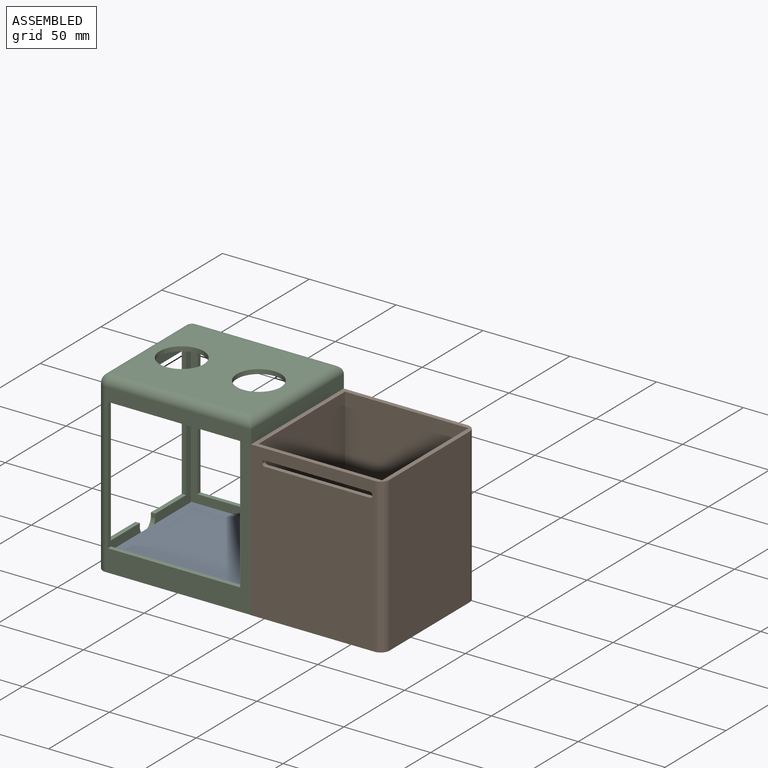
[diagram: assembled view]
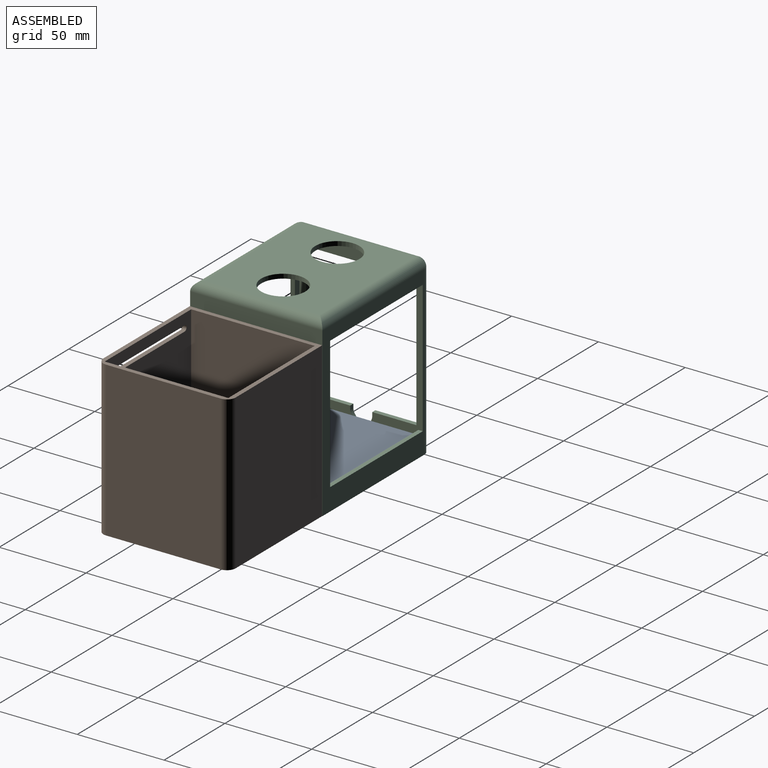
[diagram: assembled view, second angle]
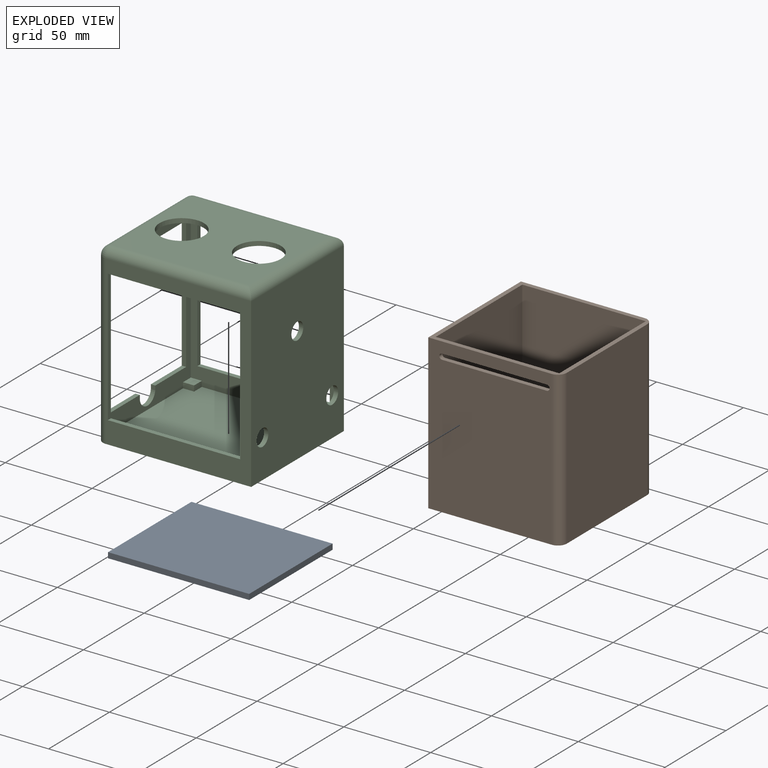
[diagram: exploded view]
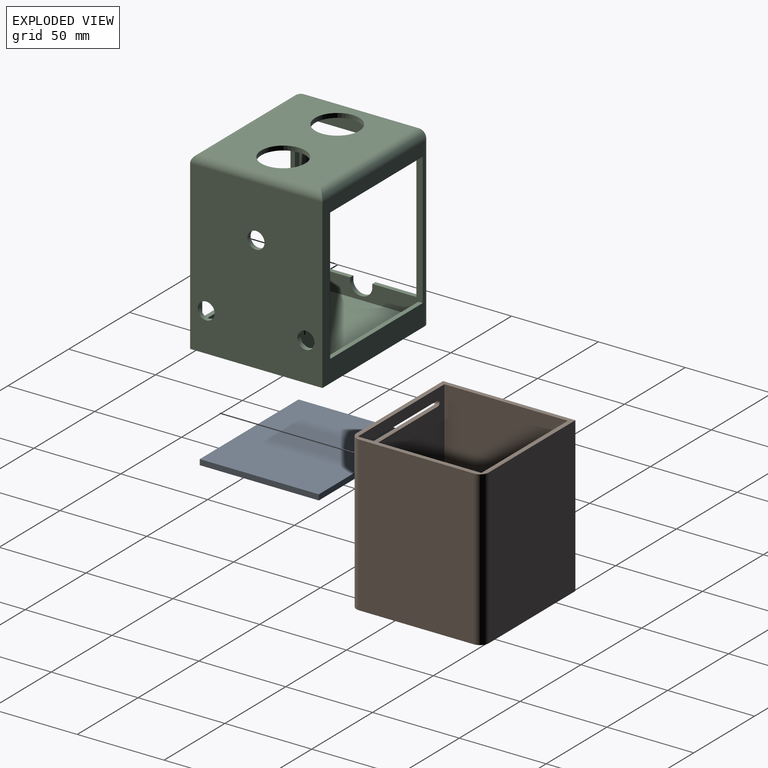
[diagram: exploded view, second angle]
ASSEMBLY  parts=3 mates=2
PART A: 6 faces, bbox 81.3x68.6x3.2 mm
  f0: plane 68.58x3.18mm, normal (1,0,0), area 217.7mm2, adj f1,f3,f4,f5
  f1: plane 81.28x3.18mm, normal (0,1,0), area 258.1mm2, adj f0,f2,f4,f5
  f2: plane 68.58x3.18mm, normal (-1,0,0), area 217.7mm2, adj f1,f3,f4,f5
  f3: plane 81.28x3.18mm, normal (0,-1,0), area 258.1mm2, adj f0,f2,f4,f5
  f4: plane 81.28x68.58mm, normal (0,0,1), area 5574.2mm2, adj f0,f1,f2,f3
  f5: plane 81.28x68.58mm, normal (0,0,-1), area 5574.2mm2, adj f0,f1,f2,f3
PART B: 23 faces, bbox 78.7x76.2x88.9 mm
  f0: plane 88.9x71.12mm, normal (0,-1,0), area 6123.1mm2, adj f2,f3,f5,f11,f12,f13,f14,f16
  f1: plane 86.36x71.12mm, normal (0,1,0), area 5942.4mm2, adj f2,f7,f8,f9,f11,f12,f13,f14
  f2: plane 76.2x76.2mm, normal (0,0,1), area 737.3mm2, adj f0,f1,f4,f5,f6,f8,f9,f10
  f3: plane 76.2x76.2mm, normal (0,0,-1), area 5795.4mm2, adj f0,f4,f5,f6,f15,f16
  f4: plane 88.9x66.04mm, normal (1,0,0), area 5871mm2, adj f2,f3,f15,f16
  f5: plane 88.9x76.2mm, normal (-1,0,0), area 6560.4mm2, adj f0,f2,f3,f6,f17,f19,f21
  f6: plane 88.9x71.12mm, normal (0,1,0), area 6322.6mm2, adj f2,f3,f5,f15
  f7: plane 71.12x71.12mm, normal (0,0,1), area 5058.1mm2, adj f1,f8,f9,f10
  f8: plane 86.36x71.12mm, normal (-1,0,0), area 6141.9mm2, adj f1,f2,f7,f10
  f9: plane 86.36x71.12mm, normal (1,0,0), area 6141.9mm2, adj f1,f2,f7,f10
  f10: plane 86.36x71.12mm, normal (0,-1,0), area 6141.9mm2, adj f2,f7,f8,f9
  f11: cylinder r=1.59mm len=3.18mm, axis (0,1,0), area 12.7mm2, adj f0,f1,f12,f14
  f12: plane 60.35x2.54mm, normal (0,0,1), area 153.3mm2, adj f0,f1,f11,f13
  f13: cylinder r=1.59mm len=3.18mm, axis (0,1,0), area 12.6mm2, adj f0,f1,f12,f14
  f14: plane 60.35x2.54mm, normal (0,0,-1), area 153.3mm2, adj f0,f1,f11,f13
  f15: cylinder r=5.08mm len=88.9mm, axis (0,0,1), area 709.4mm2, adj f2,f3,f4,f6
  f16: cylinder r=5.08mm len=88.9mm, axis (0,0,-1), area 709.4mm2, adj f0,f2,f3,f4
  f17: cylinder r=4.76mm len=9.53mm, axis (1,0,0), area 76mm2, adj f5,f18
  f18: plane 9.53x9.53mm, normal (-1,0,0), area 71.3mm2, adj f17
  f19: cylinder r=4.76mm len=9.53mm, axis (1,0,0), area 76mm2, adj f5,f20
  f20: plane 9.53x9.53mm, normal (-1,0,0), area 71.3mm2, adj f19
  f21: cylinder r=4.76mm len=9.53mm, axis (1,0,0), area 76mm2, adj f5,f22
  f22: plane 9.53x9.53mm, normal (-1,0,0), area 71.3mm2, adj f21
PART C: 53 faces, bbox 88.9x76.2x101.6 mm
  f0: plane 96.52x66.04mm, normal (-1,0,0), area 1450.4mm2, adj f18,f19,f20,f21,f22,f23,f30,f36
  f1: plane 96.52x71.12mm, normal (1,0,0), area 1900.4mm2, adj f9,f10,f11,f18,f19,f20,f30,f33
  f2: plane 96.52x76.2mm, normal (1,0,0), area 7129.5mm2, adj f6,f7,f28,f29,f31,f32,f37
  f3: plane 76.2x2.54mm, normal (-1,0,0), area 193.5mm2, adj f6,f9,f12,f35
  f4: plane 76.2x2.54mm, normal (-1,0,0), area 193.5mm2, adj f7,f10,f13,f34
  f5: plane 96.52x71.12mm, normal (-1,0,0), area 6598.9mm2, adj f9,f10,f11,f29,f31,f32,f33,f41
  f6: plane 96.52x83.82mm, normal (0,-1,0), area 2283.9mm2, adj f2,f3,f12,f15,f21,f26,f35,f37
  f7: plane 96.52x83.82mm, normal (0,1,0), area 2283.9mm2, adj f2,f4,f13,f14,f23,f27,f34,f37
  f8: plane 78.74x66.04mm, normal (0,0,1), area 4186.6mm2, adj f16,f17,f22,f26,f27,f28
  f9: plane 96.52x83.82mm, normal (0,1,0), area 2243.5mm2, adj f1,f3,f5,f11,f12,f15,f33,f35
  f10: plane 96.52x83.82mm, normal (0,-1,0), area 2243.5mm2, adj f1,f4,f5,f11,f13,f14,f33,f34
  f11: plane 83.82x71.12mm, normal (0,0,-1), area 4947.9mm2, adj f1,f5,f9,f10,f16,f17
  f12: plane 76.2x2.54mm, normal (0,0,-1), area 193.5mm2, adj f3,f6,f9,f15
  f13: plane 76.2x2.54mm, normal (0,0,-1), area 193.5mm2, adj f4,f7,f10,f14
  f14: plane 76.2x2.54mm, normal (1,0,0), area 193.5mm2, adj f7,f10,f13,f34
  f15: plane 76.2x2.54mm, normal (1,0,0), area 193.5mm2, adj f6,f9,f12,f35
  f16: cylinder r=12.7mm len=25.4mm, axis (0,0,1), area 202.7mm2, adj f8,f11
  f17: cylinder r=12.7mm len=25.4mm, axis (0,0,1), area 202.7mm2, adj f8,f11
  f18: plane 76.2x2.54mm, normal (0,1,0), area 193.5mm2, adj f0,f1,f19,f30
  f19: plane 63.5x2.54mm, normal (0,0,-1), area 161.3mm2, adj f0,f1,f18,f20
  f20: plane 76.2x2.54mm, normal (0,-1,0), area 193.5mm2, adj f0,f1,f19,f36
  f21: cylinder r=5.08mm len=96.52mm, axis (0,0,1), area 770.2mm2, adj f0,f6,f24,f37
  f22: cylinder r=5.08mm len=66.04mm, axis (0,1,0), area 527mm2, adj f0,f8,f24,f25
  f23: cylinder r=5.08mm len=96.52mm, axis (0,0,-1), area 770.2mm2, adj f0,f7,f25,f37
  f24: sphere r=5.08mm, area 40.5mm2, adj f21,f22,f26
  f25: sphere r=5.08mm, area 40.5mm2, adj f22,f23,f27
  f26: cylinder r=5.08mm len=83.82mm, axis (1,0,0), area 654.1mm2, adj f6,f8,f24,f28
  f27: cylinder r=5.08mm len=83.82mm, axis (-1,0,0), area 654.1mm2, adj f7,f8,f25,f28
  f28: cylinder r=5.08mm len=76.2mm, axis (0,-1,0), area 578.6mm2, adj f2,f8,f26,f27
  f29: cylinder r=4.89mm len=9.78mm, axis (1,0,0), area 78mm2, adj f2,f5
  f30: plane 25.4x2.54mm, normal (0,0,1), area 64.5mm2, adj f0,f1,f18,f52
  f31: cylinder r=4.89mm len=9.78mm, axis (1,0,0), area 78mm2, adj f2,f5
  f32: cylinder r=4.89mm len=9.78mm, axis (1,0,0), area 78mm2, adj f2,f5
  f33: plane 83.82x71.12mm, normal (0,0,1), area 5800mm2, adj f1,f5,f9,f10,f38,f39,f41,f42
  f34: plane 76.2x2.54mm, normal (0,0,1), area 193.5mm2, adj f4,f7,f10,f14
  f35: plane 76.2x2.54mm, normal (0,0,1), area 193.5mm2, adj f3,f6,f9,f15
  f36: plane 25.4x2.54mm, normal (0,0,1), area 64.5mm2, adj f0,f1,f20,f50
  f37: plane 88.9x76.2mm, normal (0,0,-1), area 6763.1mm2, adj f0,f2,f6,f7,f21,f23
  f38: plane 6.35x3.18mm, normal (0,-1,0), area 20.2mm2, adj f1,f33,f39,f40
  f39: plane 6.35x3.18mm, normal (1,0,0), area 20.2mm2, adj f10,f33,f38,f40
  f40: plane 6.35x6.35mm, normal (0,0,1), area 40.3mm2, adj f1,f10,f38,f39
  f41: plane 6.35x3.18mm, normal (0,-1,0), area 20.2mm2, adj f5,f33,f42,f43
  f42: plane 6.35x3.18mm, normal (-1,0,0), area 20.2mm2, adj f10,f33,f41,f43
  f43: plane 6.35x6.35mm, normal (0,0,1), area 40.3mm2, adj f5,f10,f41,f42
  f44: plane 6.35x3.18mm, normal (0,1,0), area 20.2mm2, adj f1,f33,f45,f46
  f45: plane 6.35x3.18mm, normal (1,0,0), area 20.2mm2, adj f9,f33,f44,f46
  f46: plane 6.35x6.35mm, normal (0,0,1), area 40.3mm2, adj f1,f9,f44,f45
  f47: plane 6.35x3.18mm, normal (0,1,0), area 20.2mm2, adj f5,f33,f48,f49
  f48: plane 6.35x3.18mm, normal (-1,0,0), area 20.2mm2, adj f9,f33,f47,f49
  f49: plane 6.35x6.35mm, normal (0,0,1), area 40.3mm2, adj f5,f9,f47,f48
  f50: plane 2.54x2.54mm, normal (0,-1,0), area 6.5mm2, adj f0,f1,f36,f51
  f51: cylinder r=6.42mm len=12.7mm, axis (-1,0,0), area 46.5mm2, adj f0,f1,f50,f52
  f52: plane 2.54x2.54mm, normal (0,1,0), area 6.5mm2, adj f0,f1,f30,f51
PLACE A t=(-31.49,-13.79,-35.63)mm
PLACE B t=(50.63,-13.31,1.52)mm
PLACE C t=(-31.92,-13.18,7.87)mm fixed
MATE planar A.f5 <-> C.f40  axis (0,0,-1) through (-31.49,-13.79,-37.22)mm
MATE fastened B.f17 <-> C.f29  axis (1,0,0) through (12.53,-13.31,23.74)mm
